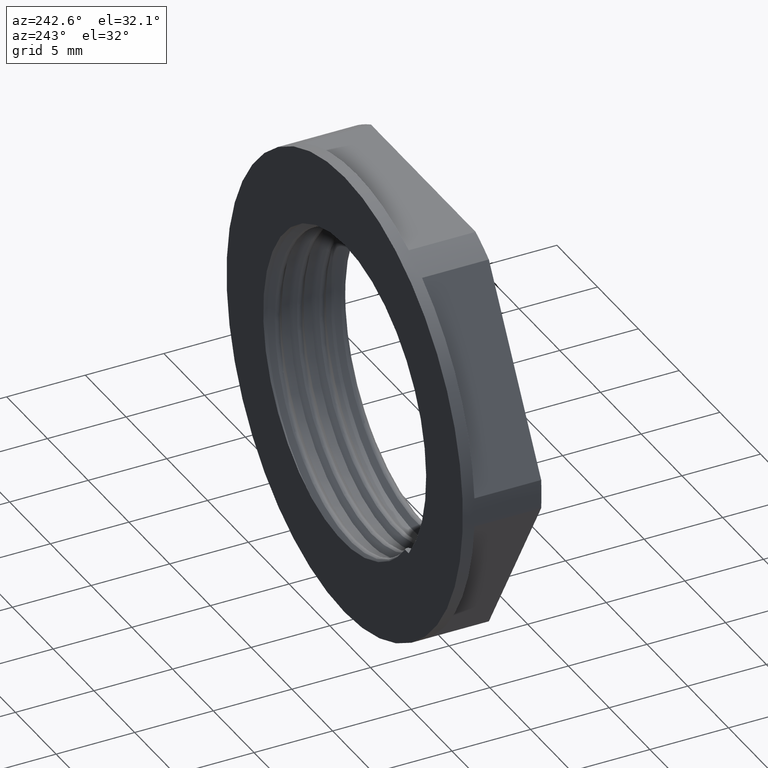
[diagram: clean part render]
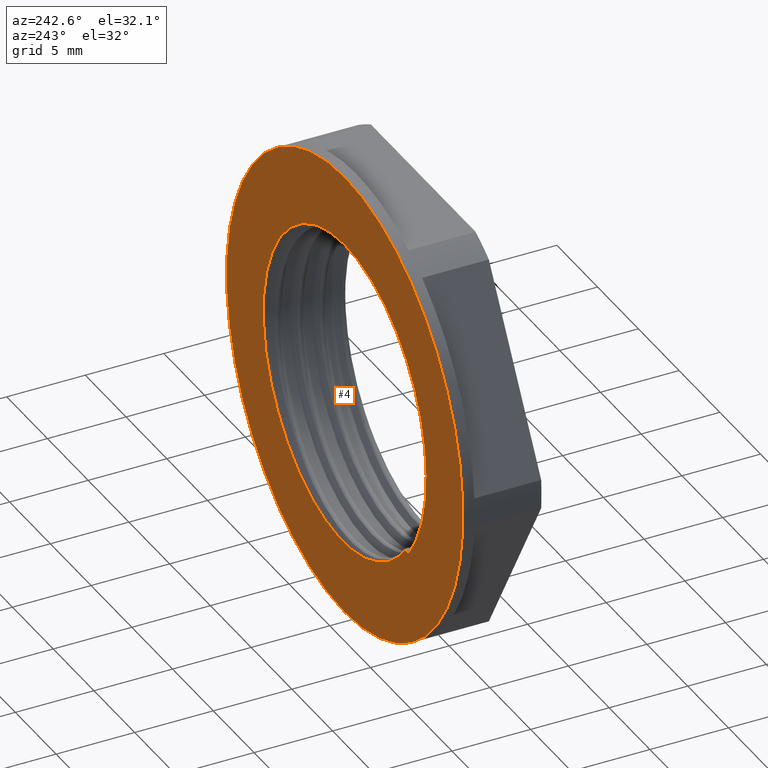
[diagram: same view with one face highlighted and labeled with its STEP entity id]
A machine part, auxiliary view. The second image highlights one B-rep face of the part: STEP entity #4.
In plain terms, the highlighted planar face has unit normal (0, -1, 0).
Its self-contained STEP definition (entity closure, byte-faithful):
#4 = ADVANCED_FACE ( 'NONE', ( #1019, #989 ), #1017, .F. ) ;
#14 = EDGE_CURVE ( 'NONE', #752, #747, #1294, .T. ) ;
#66 = EDGE_CURVE ( 'NONE', #792, #789, #1304, .T. ) ;
#68 = EDGE_CURVE ( 'NONE', #773, #752, #1316, .T. ) ;
#95 = EDGE_CURVE ( 'NONE', #789, #792, #1356, .T. ) ;
#99 = EDGE_CURVE ( 'NONE', #787, #773, #2010, .T. ) ;
#106 = EDGE_CURVE ( 'NONE', #747, #787, #122, .T. ) ;
#122 = B_SPLINE_CURVE_WITH_KNOTS ( 'NONE', 3,
 ( #2062, #2129, #2155, #2152, #2163, #2138, #2164, #2130, #2147, #2139, #2148, #2150, #2159, #2140, #2142, #2136, #2131, #2156, #2132, #2154, #2161, #2149 ),
 .UNSPECIFIED., .F., .F.,
 ( 4, 2, 2, 2, 2, 2, 2, 2, 2, 2, 4 ),
 ( 0.009479824263103363300, 0.01106916522220303600, 0.01265850618130270700, 0.01424784714040238000, 0.01504251761995221600, 0.01583718809950205400, 0.01742652905860172400, 0.01822119953815155800, 0.01901587001770139300, 0.02060521097680106900, 0.02219455193590074200 ),
 .UNSPECIFIED. ) ;
#153 = DIRECTION ( 'NONE',  ( 0.0000000000000000000, 0.0000000000000000000, -1.000000000000000000 ) ) ;
#162 = DIRECTION ( 'NONE',  ( -0.0000000000000000000, 1.000000000000000000, -0.0000000000000000000 ) ) ;
#173 = CARTESIAN_POINT ( 'NONE',  ( 0.0000000000000000000, -10.95000000000000100, 0.0000000000000000000 ) ) ;
#747 = VERTEX_POINT ( 'NONE', #2158 ) ;
#752 = VERTEX_POINT ( 'NONE', #2137 ) ;
#773 = VERTEX_POINT ( 'NONE', #2190 ) ;
#787 = VERTEX_POINT ( 'NONE', #2220 ) ;
#789 = VERTEX_POINT ( 'NONE', #2211 ) ;
#792 = VERTEX_POINT ( 'NONE', #2194 ) ;
#867 = ORIENTED_EDGE ( 'NONE', *, *, #14, .F. ) ;
#888 = ORIENTED_EDGE ( 'NONE', *, *, #99, .F. ) ;
#901 = ORIENTED_EDGE ( 'NONE', *, *, #66, .F. ) ;
#925 = ORIENTED_EDGE ( 'NONE', *, *, #106, .F. ) ;
#933 = ORIENTED_EDGE ( 'NONE', *, *, #68, .F. ) ;
#936 = EDGE_LOOP ( 'NONE', ( #925, #867, #933, #888 ) ) ;
#941 = EDGE_LOOP ( 'NONE', ( #901, #953 ) ) ;
#953 = ORIENTED_EDGE ( 'NONE', *, *, #95, .F. ) ;
#989 = FACE_OUTER_BOUND ( 'NONE', #941, .T. ) ;
#1007 = DIRECTION ( 'NONE',  ( 0.0000000000000000000, -0.0000000000000000000, -1.000000000000000000 ) ) ;
#1008 = DIRECTION ( 'NONE',  ( 0.0000000000000000000, -1.000000000000000000, 0.0000000000000000000 ) ) ;
#1010 = CARTESIAN_POINT ( 'NONE',  ( 0.0000000000000000000, -10.95000000000000100, 0.0000000000000000000 ) ) ;
#1017 = PLANE ( 'NONE',  #1302 ) ;
#1019 = FACE_BOUND ( 'NONE', #936, .T. ) ;
#1287 = AXIS2_PLACEMENT_3D ( 'NONE', #173, #162, #153 ) ;
#1294 = CIRCLE ( 'NONE', #1287, 10.00000000000000000 ) ;
#1302 = AXIS2_PLACEMENT_3D ( 'NONE', #1010, #1008, #1007 ) ;
#1304 = CIRCLE ( 'NONE', #1305, 14.50000000000000000 ) ;
#1305 = AXIS2_PLACEMENT_3D ( 'NONE', #1806, #1835, #1818 ) ;
#1316 = CIRCLE ( 'NONE', #1318, 10.00000000000000000 ) ;
#1318 = AXIS2_PLACEMENT_3D ( 'NONE', #1808, #1830, #1826 ) ;
#1356 = CIRCLE ( 'NONE', #1381, 14.50000000000000000 ) ;
#1367 = VECTOR ( 'NONE', #2032, 1000.000000000000000 ) ;
#1381 = AXIS2_PLACEMENT_3D ( 'NONE', #2035, #2046, #2007 ) ;
#1806 = CARTESIAN_POINT ( 'NONE',  ( 0.0000000000000000000, -10.95000000000000100, 0.0000000000000000000 ) ) ;
#1808 = CARTESIAN_POINT ( 'NONE',  ( 0.0000000000000000000, -10.95000000000000100, 0.0000000000000000000 ) ) ;
#1818 = DIRECTION ( 'NONE',  ( 0.0000000000000000000, 0.0000000000000000000, -1.000000000000000000 ) ) ;
#1826 = DIRECTION ( 'NONE',  ( 0.0000000000000000000, 0.0000000000000000000, -1.000000000000000000 ) ) ;
#1830 = DIRECTION ( 'NONE',  ( -0.0000000000000000000, 1.000000000000000000, -0.0000000000000000000 ) ) ;
#1835 = DIRECTION ( 'NONE',  ( -0.0000000000000000000, -1.000000000000000000, -0.0000000000000000000 ) ) ;
#2007 = DIRECTION ( 'NONE',  ( 0.0000000000000000000, 0.0000000000000000000, -1.000000000000000000 ) ) ;
#2010 = LINE ( 'NONE', #2022, #1367 ) ;
#2022 = CARTESIAN_POINT ( 'NONE',  ( 0.0000000000000000000, -10.95000000000000100, -6.200000000000001100 ) ) ;
#2032 = DIRECTION ( 'NONE',  ( -1.000000000000000000, -0.0000000000000000000, -0.0000000000000000000 ) ) ;
#2035 = CARTESIAN_POINT ( 'NONE',  ( 0.0000000000000000000, -10.95000000000000100, 0.0000000000000000000 ) ) ;
#2046 = DIRECTION ( 'NONE',  ( -0.0000000000000000000, -1.000000000000000000, -0.0000000000000000000 ) ) ;
#2062 = CARTESIAN_POINT ( 'NONE',  ( 3.996844824223645200, -10.95000000000000500, -9.166527775067102400 ) ) ;
#2129 = CARTESIAN_POINT ( 'NONE',  ( 3.509636037407822600, -10.95000000000000500, -9.363241339196337200 ) ) ;
#2130 = CARTESIAN_POINT ( 'NONE',  ( -0.9033731322657657700, -10.94999999999999600, -9.828353127879951900 ) ) ;
#2131 = CARTESIAN_POINT ( 'NONE',  ( -4.859051130778990300, -10.94999999999999600, -8.456627253296424800 ) ) ;
#2132 = CARTESIAN_POINT ( 'NONE',  ( -5.938881558422435700, -10.94999999999999400, -7.703841364525475300 ) ) ;
#2136 = CARTESIAN_POINT ( 'NONE',  ( -4.629625791410212800, -10.94999999999999900, -8.592832769821956900 ) ) ;
#2137 = CARTESIAN_POINT ( 'NONE',  ( 0.0000000000000000000, -10.95000000000000100, 10.00000000000000000 ) ) ;
#2138 = CARTESIAN_POINT ( 'NONE',  ( 0.4049860900405955500, -10.95000000000000800, -9.905938472787594800 ) ) ;
#2139 = CARTESIAN_POINT ( 'NONE',  ( -1.686177684771805100, -10.95000000000000500, -9.703109693865227900 ) ) ;
#2140 = CARTESIAN_POINT ( 'NONE',  ( -3.928576100706489400, -10.95000000000000300, -8.959283630281934300 ) ) ;
#2142 = CARTESIAN_POINT ( 'NONE',  ( -4.164854801893624400, -10.94999999999999800, -8.843822829408852100 ) ) ;
#2147 = CARTESIAN_POINT ( 'NONE',  ( -1.164510986339970100, -10.95000000000000100, -9.793830515605423100 ) ) ;
#2148 = CARTESIAN_POINT ( 'NONE',  ( -1.946704608087171300, -10.94999999999999600, -9.646775103668566900 ) ) ;
#2149 = CARTESIAN_POINT ( 'NONE',  ( -7.404022937189632000, -10.95000000000000100, -6.200000000000001100 ) ) ;
#2150 = CARTESIAN_POINT ( 'NONE',  ( -2.712930530227433600, -10.94999999999999800, -9.448307430937045800 ) ) ;
#2152 = CARTESIAN_POINT ( 'NONE',  ( 1.984759647221477500, -10.95000000000000600, -9.756564076641694800 ) ) ;
#2154 = CARTESIAN_POINT ( 'NONE',  ( -6.713663704816220000, -10.94999999999999600, -7.000047275419206000 ) ) ;
#2155 = CARTESIAN_POINT ( 'NONE',  ( 3.009791458294607500, -10.95000000000000300, -9.520635541590513300 ) ) ;
#2156 = CARTESIAN_POINT ( 'NONE',  ( -5.523973498502824600, -10.94999999999999800, -8.024365437883210100 ) ) ;
#2158 = CARTESIAN_POINT ( 'NONE',  ( 3.996844824223645200, -10.95000000000000500, -9.166527775067102400 ) ) ;
#2159 = CARTESIAN_POINT ( 'NONE',  ( -3.208298083239719200, -10.95000000000000300, -9.276176000581482800 ) ) ;
#2161 = CARTESIAN_POINT ( 'NONE',  ( -7.073684521765624600, -10.95000000000000500, -6.616944551642704100 ) ) ;
#2163 = CARTESIAN_POINT ( 'NONE',  ( 1.455412979403169200, -10.95000000000000800, -9.834911753447629600 ) ) ;
#2164 = CARTESIAN_POINT ( 'NONE',  ( -0.1190688745761747700, -10.94999999999999900, -9.900219736238844000 ) ) ;
#2190 = CARTESIAN_POINT ( 'NONE',  ( -7.846018098373211700, -10.95000000000000100, -6.200000000000001100 ) ) ;
#2194 = CARTESIAN_POINT ( 'NONE',  ( 0.0000000000000000000, -10.95000000000000100, -14.50000000000000000 ) ) ;
#2211 = CARTESIAN_POINT ( 'NONE',  ( 1.775737858763662000E-015, -10.95000000000000100, 14.50000000000000000 ) ) ;
#2220 = CARTESIAN_POINT ( 'NONE',  ( -7.404022937189632000, -10.95000000000000100, -6.200000000000001100 ) ) ;